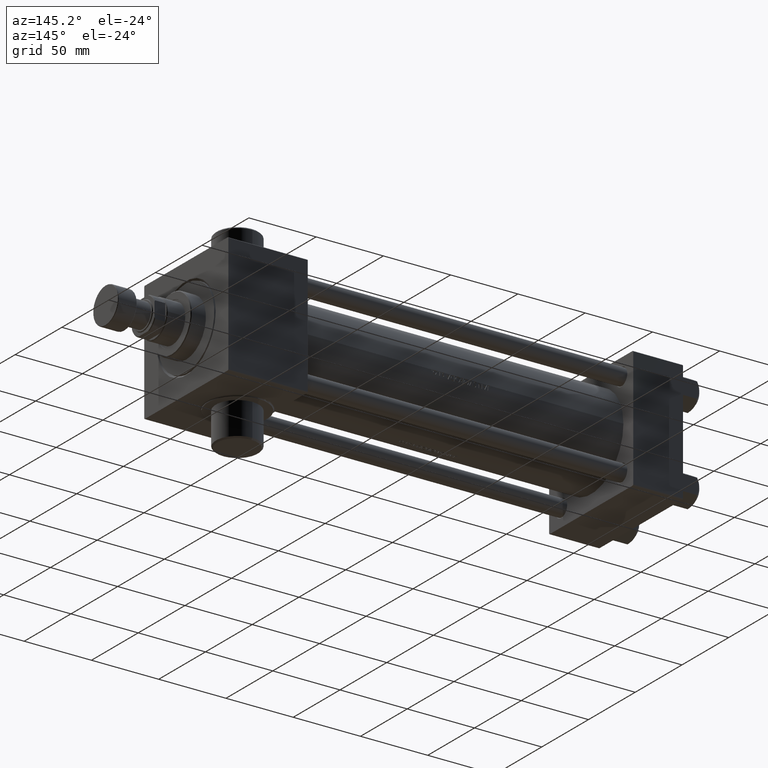
[diagram: clean part render]
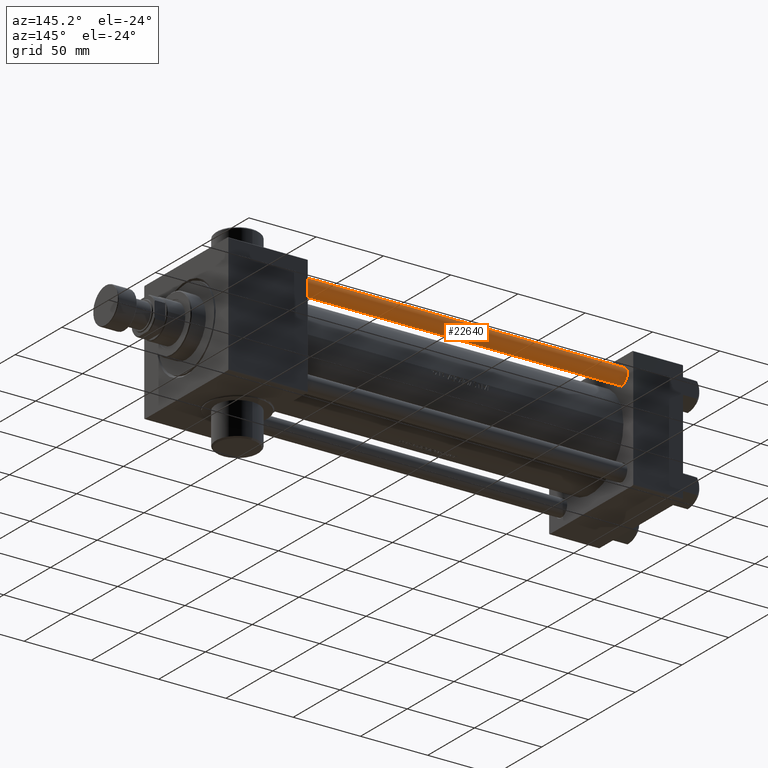
[diagram: same view with one face highlighted and labeled with its STEP entity id]
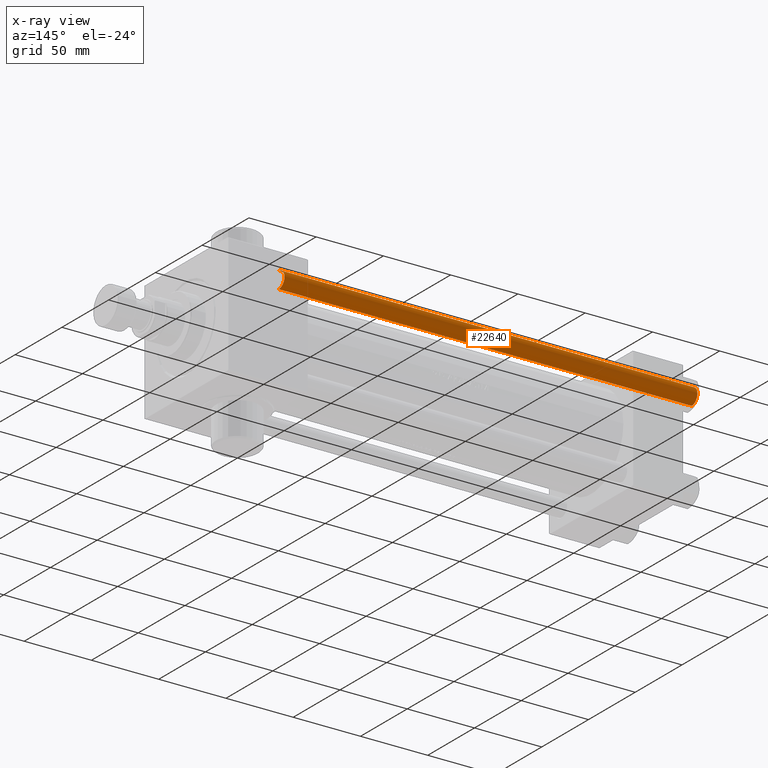
[diagram: x-ray of the same camera — body ghosted, the highlighted face saturated]
A machine part, auxiliary view. The second image highlights one B-rep face of the part: STEP entity #22640.
The next image is the same camera in x-ray: the body ghosted, the highlighted face saturated — about 0% of this face is hidden behind the body in this view.
In plain terms, the highlighted cylindrical surface (edge-blend (fillet) strip) has radius 6 mm, axis along (1, -0, 0).
Its self-contained STEP definition (entity closure, byte-faithful):
#110 = EDGE_CURVE ( 'NONE', #24597, #10165, #4803, .T. ) ;
#1238 = CARTESIAN_POINT ( 'NONE',  ( 6.000000000000000888, 7.347880794884120722E-16, 308.0000000000000000 ) ) ;
#2455 = VECTOR ( 'NONE', #35879, 1000.000000000000000 ) ;
#3218 = AXIS2_PLACEMENT_3D ( 'NONE', #11222, #21244, #43122 ) ;
#4545 = ORIENTED_EDGE ( 'NONE', *, *, #110, .T. ) ;
#4803 = LINE ( 'NONE', #1238, #10571 ) ;
#5608 = DIRECTION ( 'NONE',  ( 1.000000000000000000, 0.000000000000000000, 0.000000000000000000 ) ) ;
#6272 = CIRCLE ( 'NONE', #3218, 6.000000000000000888 ) ;
#6559 = DIRECTION ( 'NONE',  ( -1.000000000000000000, 0.000000000000000000, 0.000000000000000000 ) ) ;
#7992 = CARTESIAN_POINT ( 'NONE',  ( -6.000000000000000888, 0.000000000000000000, 308.0000000000000000 ) ) ;
#8950 = EDGE_CURVE ( 'NONE', #28180, #24597, #6272, .T. ) ;
#9033 = ORIENTED_EDGE ( 'NONE', *, *, #46010, .F. ) ;
#9169 = AXIS2_PLACEMENT_3D ( 'NONE', #23717, #30859, #5608 ) ;
#10165 = VERTEX_POINT ( 'NONE', #22122 ) ;
#10571 = VECTOR ( 'NONE', #15768, 1000.000000000000000 ) ;
#11222 = CARTESIAN_POINT ( 'NONE',  ( 0.000000000000000000, 0.000000000000000000, 307.4999999999999432 ) ) ;
#11675 = ORIENTED_EDGE ( 'NONE', *, *, #41965, .T. ) ;
#14156 = EDGE_LOOP ( 'NONE', ( #26951, #4545, #11675, #9033 ) ) ;
#15768 = DIRECTION ( 'NONE',  ( -0.000000000000000000, -0.000000000000000000, -1.000000000000000000 ) ) ;
#17296 = CYLINDRICAL_SURFACE ( 'NONE', #18748, 6.000000000000000888 ) ;
#17532 = CARTESIAN_POINT ( 'NONE',  ( 0.000000000000000000, 0.000000000000000000, 308.0000000000000000 ) ) ;
#18691 = CARTESIAN_POINT ( 'NONE',  ( -6.000000000000000888, 0.000000000000000000, 0.5000000000000559552 ) ) ;
#18748 = AXIS2_PLACEMENT_3D ( 'NONE', #17532, #38457, #6559 ) ;
#21244 = DIRECTION ( 'NONE',  ( 0.000000000000000000, 0.000000000000000000, -1.000000000000000000 ) ) ;
#22122 = CARTESIAN_POINT ( 'NONE',  ( 6.000000000000000888, 7.347880794884120722E-16, 0.5000000000000559552 ) ) ;
#22296 = LINE ( 'NONE', #7992, #2455 ) ;
#22640 = ADVANCED_FACE ( 'NONE', ( #23958 ), #17296, .T. ) ;
#23717 = CARTESIAN_POINT ( 'NONE',  ( 0.000000000000000000, 0.000000000000000000, 0.5000000000000559552 ) ) ;
#23958 = FACE_OUTER_BOUND ( 'NONE', #14156, .T. ) ;
#24597 = VERTEX_POINT ( 'NONE', #35826 ) ;
#26951 = ORIENTED_EDGE ( 'NONE', *, *, #8950, .T. ) ;
#28180 = VERTEX_POINT ( 'NONE', #35712 ) ;
#29749 = VERTEX_POINT ( 'NONE', #18691 ) ;
#30859 = DIRECTION ( 'NONE',  ( -0.000000000000000000, -0.000000000000000000, 1.000000000000000000 ) ) ;
#35712 = CARTESIAN_POINT ( 'NONE',  ( -6.000000000000000888, 0.000000000000000000, 307.4999999999999432 ) ) ;
#35826 = CARTESIAN_POINT ( 'NONE',  ( 6.000000000000000888, 7.347880794884120722E-16, 307.4999999999999432 ) ) ;
#35879 = DIRECTION ( 'NONE',  ( -0.000000000000000000, -0.000000000000000000, -1.000000000000000000 ) ) ;
#38457 = DIRECTION ( 'NONE',  ( -0.000000000000000000, -0.000000000000000000, -1.000000000000000000 ) ) ;
#41965 = EDGE_CURVE ( 'NONE', #10165, #29749, #44136, .T. ) ;
#43122 = DIRECTION ( 'NONE',  ( 1.000000000000000000, 0.000000000000000000, 0.000000000000000000 ) ) ;
#44136 = CIRCLE ( 'NONE', #9169, 6.000000000000000888 ) ;
#46010 = EDGE_CURVE ( 'NONE', #28180, #29749, #22296, .T. ) ;